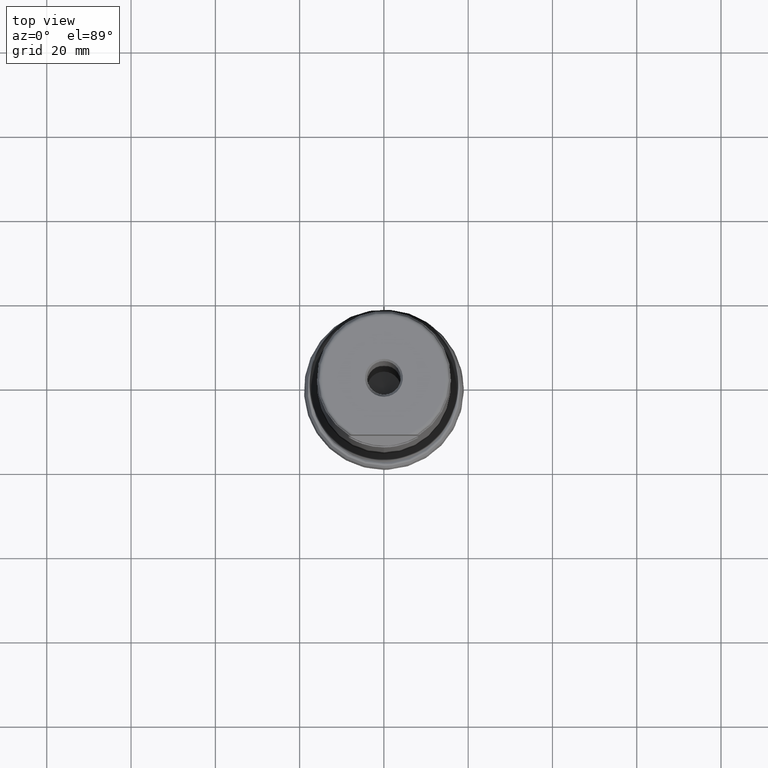
[diagram: clean part render]
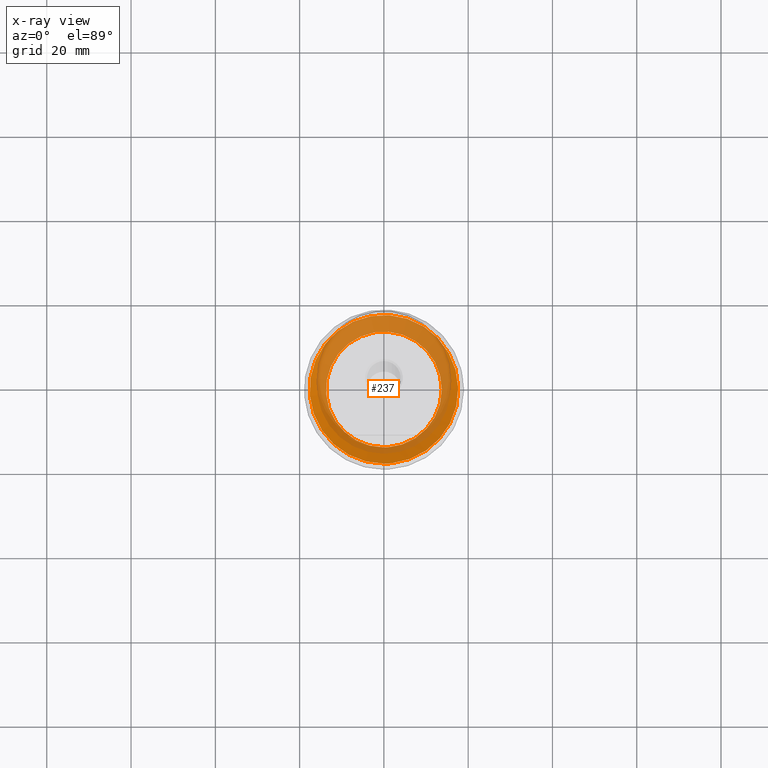
[diagram: x-ray — body ghosted, one internal face saturated and labeled with its STEP entity id]
A machine part, top view, then the same camera in x-ray: the body is ghosted and one INTERNAL B-rep face — a face not visible from any outside direction — is saturated and labeled: STEP entity #237.
In plain terms, the highlighted face is a SurfaceOfRevolution surface.
Its self-contained STEP definition (entity closure, byte-faithful):
#128=SURFACE_OF_REVOLUTION('',#809,#149);
#149=AXIS1_PLACEMENT('',#1676,#1077);
#237=ADVANCED_FACE('',(#367,#368),#128,.F.);
#267=CIRCLE('',#865,13.7389515371165);
#287=CIRCLE('',#885,17.6308894981601);
#367=FACE_BOUND('',#457,.T.);
#368=FACE_BOUND('',#458,.T.);
#457=EDGE_LOOP('',(#634));
#458=EDGE_LOOP('',(#635));
#634=ORIENTED_EDGE('',*,*,#763,.T.);
#635=ORIENTED_EDGE('',*,*,#743,.F.);
#675=VERTEX_POINT('',#1489);
#695=VERTEX_POINT('',#1651);
#743=EDGE_CURVE('',#675,#675,#267,.T.);
#763=EDGE_CURVE('',#695,#695,#287,.T.);
#809=B_SPLINE_CURVE_WITH_KNOTS('',3,(#1664,#1665,#1666,#1667,#1668,#1669,
#1670,#1671,#1672,#1673,#1674,#1675),.UNSPECIFIED.,.F.,.F.,(4,1,1,1,1,1,
1,1,1,4),(0.,0.221418157861957,0.365983083750147,0.510548009638337,0.655112935526527,
0.799677861414718,0.871960324358813,0.90810155583086,0.944242787302908,
1.),.UNSPECIFIED.);
#865=AXIS2_PLACEMENT_3D('',#1488,#1009,#1010);
#885=AXIS2_PLACEMENT_3D('',#1650,#1074,#1075);
#1009=DIRECTION('',(0.,1.17145536458252E-15,1.));
#1010=DIRECTION('',(0.,-1.,1.19950004752971E-15));
#1074=DIRECTION('',(0.,1.17145536458252E-15,1.));
#1075=DIRECTION('',(0.,-1.,1.18069378824557E-15));
#1077=DIRECTION('',(0.,1.17145536458252E-15,1.));
#1488=CARTESIAN_POINT('',(0.,6.06742150061792E-15,5.17938769504905));
#1489=CARTESIAN_POINT('',(0.,-13.7389515371165,5.17938769504906));
#1650=CARTESIAN_POINT('',(0.,8.57187431718838E-15,7.31728632293487));
#1651=CARTESIAN_POINT('',(0.,-17.6308894981601,7.31728632293489));
#1664=CARTESIAN_POINT('',(13.6293649568582,-1.73181991327076,5.17938769504905));
#1665=CARTESIAN_POINT('',(13.9125948835124,-1.7312861224695,5.34779126610784));
#1666=CARTESIAN_POINT('',(14.3826592505569,-1.73097392298967,5.62293447534069));
#1667=CARTESIAN_POINT('',(15.0444849392153,-1.73241014093891,5.99610266370651));
#1668=CARTESIAN_POINT('',(15.6108789551547,-1.73494829605219,6.30553924584417));
#1669=CARTESIAN_POINT('',(16.1808520361107,-1.73863687438848,6.6083322607786));
#1670=CARTESIAN_POINT('',(16.6574426177312,-1.74215240078013,6.85759686093803));
#1671=CARTESIAN_POINT('',(16.9915736800168,-1.74505826046699,7.03109145120792));
#1672=CARTESIAN_POINT('',(17.1826583385669,-1.74626593297719,7.12989476440951));
#1673=CARTESIAN_POINT('',(17.3521773062814,-1.74904975108953,7.21726527634693));
#1674=CARTESIAN_POINT('',(17.4730781536841,-1.73416989444407,7.2795427127156));
#1675=CARTESIAN_POINT('',(17.5463757823192,-1.72422776974991,7.31728632293487));
#1676=CARTESIAN_POINT('',(0.,0.,0.));